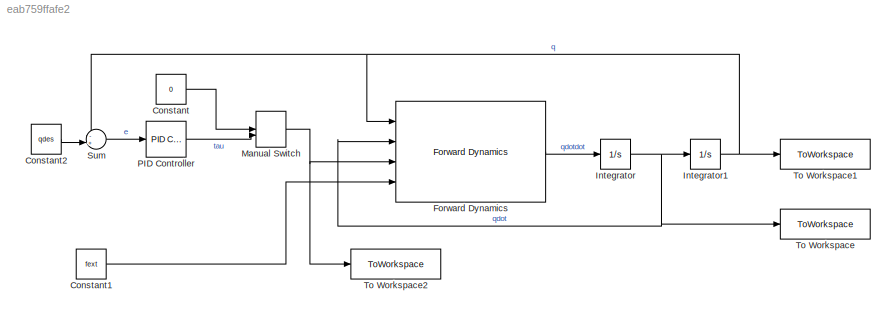
MODEL slx_eab759ffafe2
KIND model
CONFIG AbsTol = auto
CONFIG EnableMultiTasking = off
CONFIG FixedStep = 0.001
CONFIG MaxStep = 0.01
CONFIG MinStep = auto
CONFIG RelTol = 1e-2
CONFIG SampleTimeConstraint = Unconstrained
CONFIG SolverName = ode3
CONFIG StartTime = 0.0
CONFIG StopTime = 2
BLOCK [Constant] Constant
  Value = 0
BLOCK [Constant] Constant1
  Value = fext
BLOCK [Constant] Constant2
  Value = qdes
BLOCK [Reference] Forward Dynamics  REF=robotmaniplib/Forward Dynamics
  Ports = [4, 1]
  SourceBlock = robotmaniplib/Forward Dynamics
  SourceProductBaseCode = RO
  SourceType = Forward Dynamics
BLOCK [Integrator] Integrator
  InitialCondition = qdotinit
  Ports = [1, 1]
BLOCK [Integrator] Integrator1
  InitialCondition = qinit
  Ports = [1, 1]
BLOCK [ManualSwitch] Manual Switch
BLOCK [Reference] PID Controller  REF=slpidlib/PID Controller
  Ports = [1, 1]
  SourceBlock = slpidlib/PID Controller
  SourceProductBaseCode = SL
  SourceType = PID 1dof
BLOCK [Sum] Sum
  Inputs = -+|
  Ports = [2, 1]
BLOCK [ToWorkspace] To Workspace
  FixptAsFi = on
  MaxDataPoints = inf
  Ports = [1]
  SampleTime = -1
  VariableName = qdot
BLOCK [ToWorkspace] To Workspace1
  FixptAsFi = on
  MaxDataPoints = inf
  Ports = [1]
  SampleTime = -1
  VariableName = q
BLOCK [ToWorkspace] To Workspace2
  FixptAsFi = on
  MaxDataPoints = inf
  Ports = [1]
  SampleTime = -1
  Save2DSignal = 2-D array (concatenate along first dimension)
  VariableName = tau
LINE Constant1:1 -> Forward Dynamics:4
LINE Constant2:1 -> Sum:2
LINE Constant:1 -> Manual Switch:1
LINE Forward Dynamics:1 -> Integrator:1
NET Integrator1:1 -> Forward Dynamics:1, Sum:1, To Workspace1:1
NET Integrator:1 -> Forward Dynamics:2, Integrator1:1, To Workspace:1
NET Manual Switch:1 -> Forward Dynamics:3, To Workspace2:1
LINE PID Controller:1 -> Manual Switch:2
LINE Sum:1 -> PID Controller:1
note: NET lines group one-source signal fan-out (src -> all destinations, sorted); 1:1 wires keep LINE
